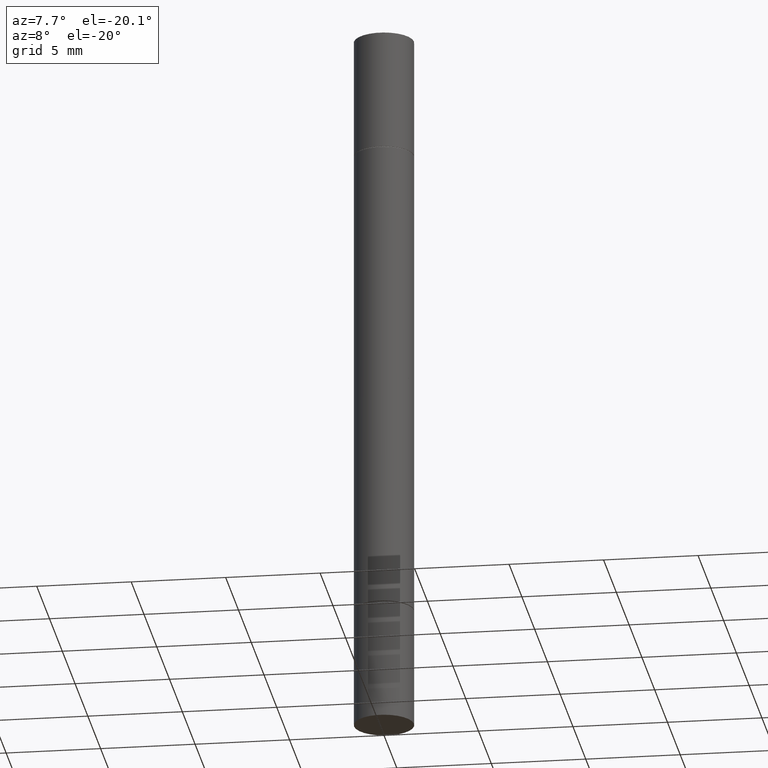
[diagram: clean part render]
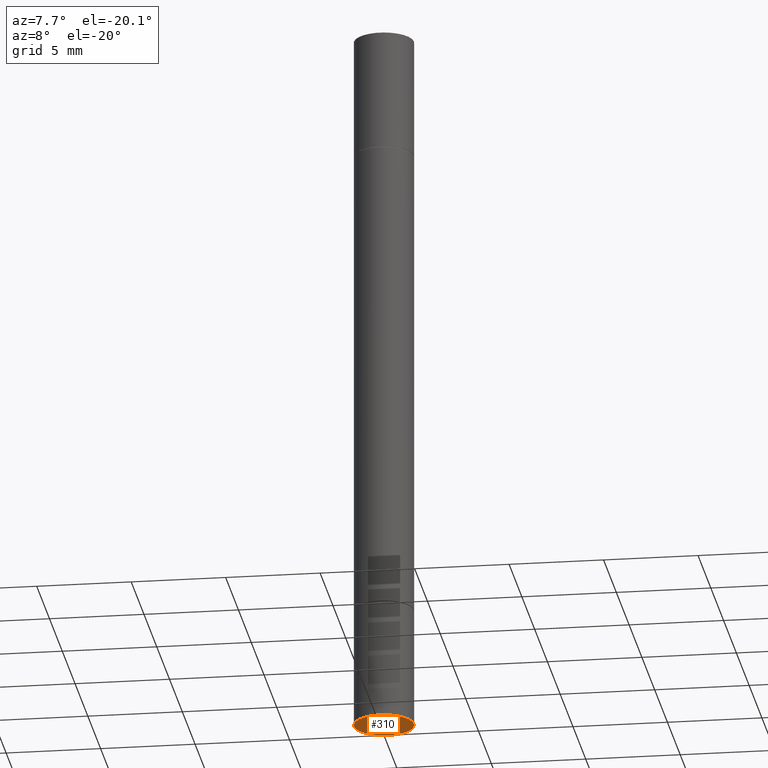
[diagram: same view with one face highlighted and labeled with its STEP entity id]
A machine part, auxiliary view. The second image highlights one B-rep face of the part: STEP entity #310.
In plain terms, the highlighted planar face has unit normal (0, -0, -1).
Its self-contained STEP definition (entity closure, byte-faithful):
#17 = FACE_OUTER_BOUND ( 'NONE', #484, .T. ) ;
#21 = CARTESIAN_POINT ( 'NONE',  ( 3.668203209277704895E-29, -5.237222008264718177E-15, -1.500000000000000222 ) ) ;
#89 = AXIS2_PLACEMENT_3D ( 'NONE', #21, #542, #127 ) ;
#116 = CARTESIAN_POINT ( 'NONE',  ( 4.364351673554284500E-16, 0.06249999999999478195, -1.500000000000000444 ) ) ;
#127 = DIRECTION ( 'NONE',  ( 1.000000000000000000, -6.982962677686261189E-15, 0.000000000000000000 ) ) ;
#143 = AXIS2_PLACEMENT_3D ( 'NONE', #194, #620, #197 ) ;
#164 = VERTEX_POINT ( 'NONE', #263 ) ;
#194 = CARTESIAN_POINT ( 'NONE',  ( 3.668203209277704895E-29, -5.237222008264718177E-15, -1.500000000000000222 ) ) ;
#197 = DIRECTION ( 'NONE',  ( 1.000000000000000000, -6.982962677686261189E-15, 0.000000000000000000 ) ) ;
#228 = EDGE_CURVE ( 'NONE', #164, #502, #580, .T. ) ;
#263 = CARTESIAN_POINT ( 'NONE',  ( -0.06250000000000001388, -4.356697631059263102E-15, -1.500000000000000222 ) ) ;
#310 = ADVANCED_FACE ( 'NONE', ( #17 ), #647, .T. ) ;
#321 = DIRECTION ( 'NONE',  ( 2.438088387897960049E-29, -3.491481338843145188E-15, -1.000000000000000000 ) ) ;
#335 = AXIS2_PLACEMENT_3D ( 'NONE', #116, #321, #430 ) ;
#362 = CARTESIAN_POINT ( 'NONE',  ( 0.06250000000000001388, -5.673657175620109846E-15, -1.500000000000000222 ) ) ;
#370 = ORIENTED_EDGE ( 'NONE', *, *, #469, .F. ) ;
#384 = ORIENTED_EDGE ( 'NONE', *, *, #228, .F. ) ;
#430 = DIRECTION ( 'NONE',  ( -1.000000000000000000, 6.982962677686265922E-15, -4.876176775795935793E-29 ) ) ;
#469 = EDGE_CURVE ( 'NONE', #502, #164, #666, .T. ) ;
#484 = EDGE_LOOP ( 'NONE', ( #370, #384 ) ) ;
#502 = VERTEX_POINT ( 'NONE', #362 ) ;
#542 = DIRECTION ( 'NONE',  ( -2.445468806185136597E-29, 3.491481338843145583E-15, 1.000000000000000000 ) ) ;
#580 = CIRCLE ( 'NONE', #89, 0.06250000000000001388 ) ;
#620 = DIRECTION ( 'NONE',  ( -2.445468806185136597E-29, 3.491481338843145583E-15, 1.000000000000000000 ) ) ;
#647 = PLANE ( 'NONE',  #335 ) ;
#666 = CIRCLE ( 'NONE', #143, 0.06250000000000001388 ) ;